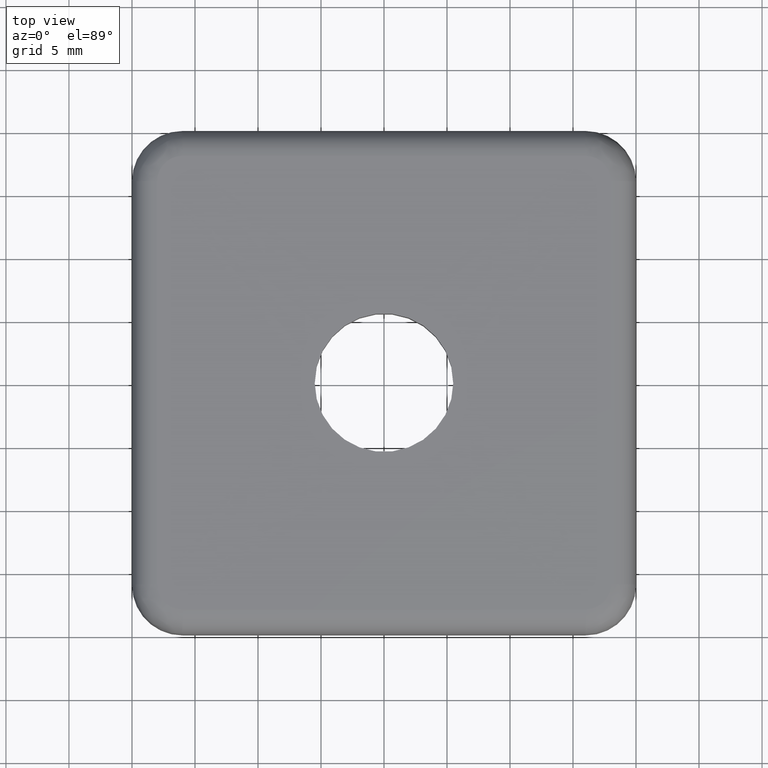
[diagram: clean part render]
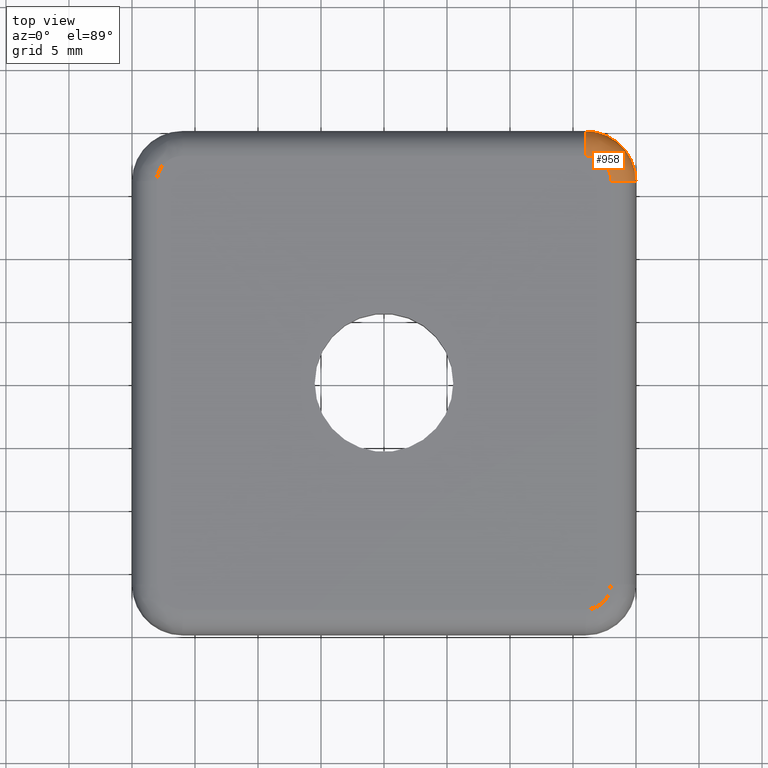
[diagram: same view with one face highlighted and labeled with its STEP entity id]
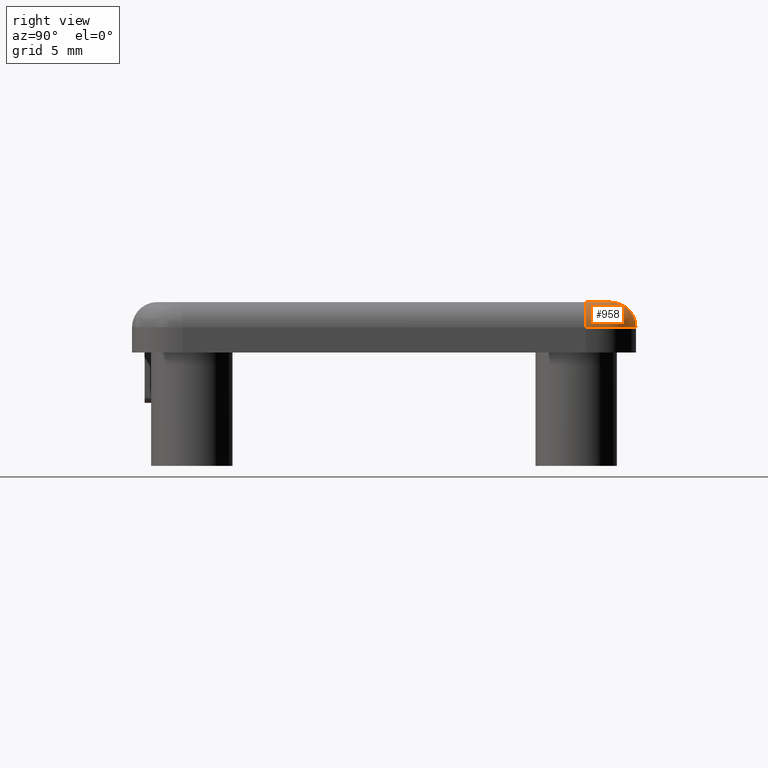
[diagram: same view with one face highlighted and labeled with its STEP entity id]
A machine part, top view. The second image highlights one B-rep face of the part: STEP entity #958.
A second angle (right view) of the same face is appended — the face is thin or edge-on in the first view.
In plain terms, the highlighted face is a freeform B-spline surface patch.
Its self-contained STEP definition (entity closure, byte-faithful):
#18=(
BOUNDED_SURFACE()
B_SPLINE_SURFACE(2,2,((#1690,#1691,#1692),(#1693,#1694,#1695),(#1696,#1697,
#1698)),.UNSPECIFIED.,.F.,.F.,.F.)
B_SPLINE_SURFACE_WITH_KNOTS((3,3),(3,3),(-1.57079632679488,4.3071453157395E-14),
(1.57079632679495,3.1415926535898),.UNSPECIFIED.)
GEOMETRIC_REPRESENTATION_ITEM()
RATIONAL_B_SPLINE_SURFACE(((1.,0.707106781186567,1.),(0.70710678118654,
0.500000000000009,0.70710678118654),(1.,0.707106781186567,1.)))
REPRESENTATION_ITEM('')
SURFACE()
);
#116=FACE_OUTER_BOUND('',#193,.T.);
#193=EDGE_LOOP('',(#830,#831,#832,#833));
#401=CIRCLE('',#1093,2.);
#402=CIRCLE('',#1094,2.);
#403=CIRCLE('',#1095,4.);
#404=CIRCLE('',#1096,2.);
#485=VERTEX_POINT('',#1685);
#486=VERTEX_POINT('',#1686);
#487=VERTEX_POINT('',#1699);
#488=VERTEX_POINT('',#1700);
#603=EDGE_CURVE('',#485,#486,#401,.T.);
#606=EDGE_CURVE('',#487,#488,#402,.T.);
#607=EDGE_CURVE('',#488,#486,#403,.T.);
#608=EDGE_CURVE('',#485,#487,#404,.T.);
#830=ORIENTED_EDGE('',*,*,#606,.T.);
#831=ORIENTED_EDGE('',*,*,#607,.T.);
#832=ORIENTED_EDGE('',*,*,#603,.F.);
#833=ORIENTED_EDGE('',*,*,#608,.T.);
#958=ADVANCED_FACE('',(#116),#18,.F.);
#1093=AXIS2_PLACEMENT_3D('',#1687,#1375,#1376);
#1094=AXIS2_PLACEMENT_3D('',#1701,#1379,#1380);
#1095=AXIS2_PLACEMENT_3D('',#1702,#1381,#1382);
#1096=AXIS2_PLACEMENT_3D('',#1703,#1383,#1384);
#1375=DIRECTION('center_axis',(-1.,0.,0.));
#1376=DIRECTION('ref_axis',(0.,0.,1.));
#1379=DIRECTION('center_axis',(0.,1.,0.));
#1380=DIRECTION('ref_axis',(0.,0.,1.));
#1381=DIRECTION('center_axis',(0.,0.,1.));
#1382=DIRECTION('ref_axis',(0.707106781186548,0.707106781186547,0.));
#1383=DIRECTION('center_axis',(0.,0.,-1.));
#1384=DIRECTION('ref_axis',(0.707106781186548,0.707106781186547,0.));
#1685=CARTESIAN_POINT('',(16.,18.,4.));
#1686=CARTESIAN_POINT('',(16.,20.,2.));
#1687=CARTESIAN_POINT('Origin',(16.,18.,2.));
#1690=CARTESIAN_POINT('Ctrl Pts',(15.9999999999997,18.,4.));
#1691=CARTESIAN_POINT('Ctrl Pts',(17.9999999999999,17.9999999999999,4.00000000000006));
#1692=CARTESIAN_POINT('Ctrl Pts',(18.,15.9999999999997,3.99999999999999));
#1693=CARTESIAN_POINT('Ctrl Pts',(15.9999999999997,20.0000000000001,4.00000000000002));
#1694=CARTESIAN_POINT('Ctrl Pts',(20.,20.,4.00000000000015));
#1695=CARTESIAN_POINT('Ctrl Pts',(20.0000000000001,15.9999999999997,4.00000000000001));
#1696=CARTESIAN_POINT('Ctrl Pts',(15.9999999999998,20.0000000000001,1.99999999999995));
#1697=CARTESIAN_POINT('Ctrl Pts',(19.9999999999999,19.9999999999999,2.00000000000008));
#1698=CARTESIAN_POINT('Ctrl Pts',(20.0000000000001,15.9999999999998,1.99999999999994));
#1699=CARTESIAN_POINT('',(18.,16.,4.));
#1700=CARTESIAN_POINT('',(20.,16.,2.));
#1701=CARTESIAN_POINT('Origin',(18.,16.,2.));
#1702=CARTESIAN_POINT('Origin',(16.,16.,2.));
#1703=CARTESIAN_POINT('Origin',(16.,16.,4.));